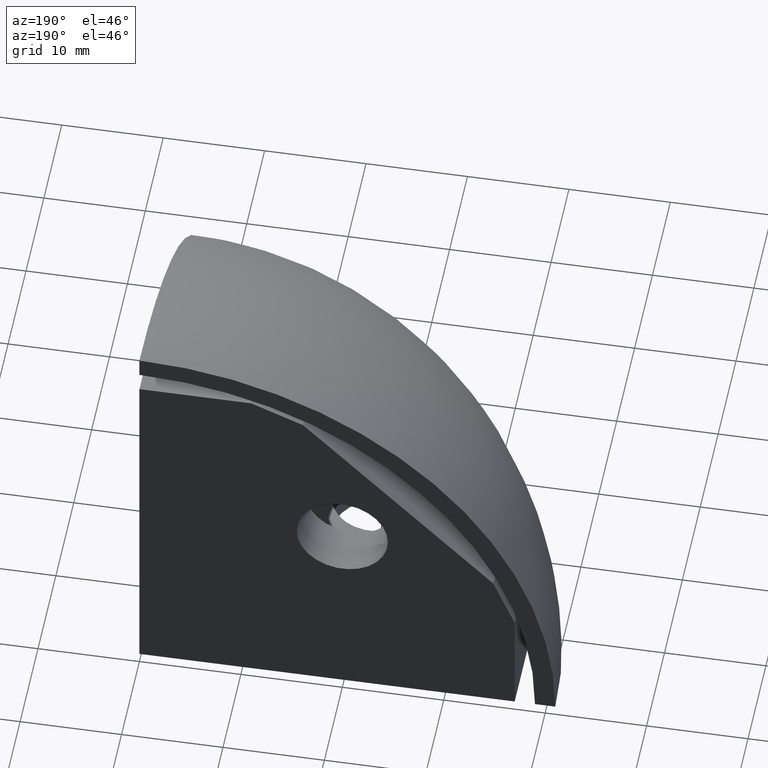
[diagram: clean part render]
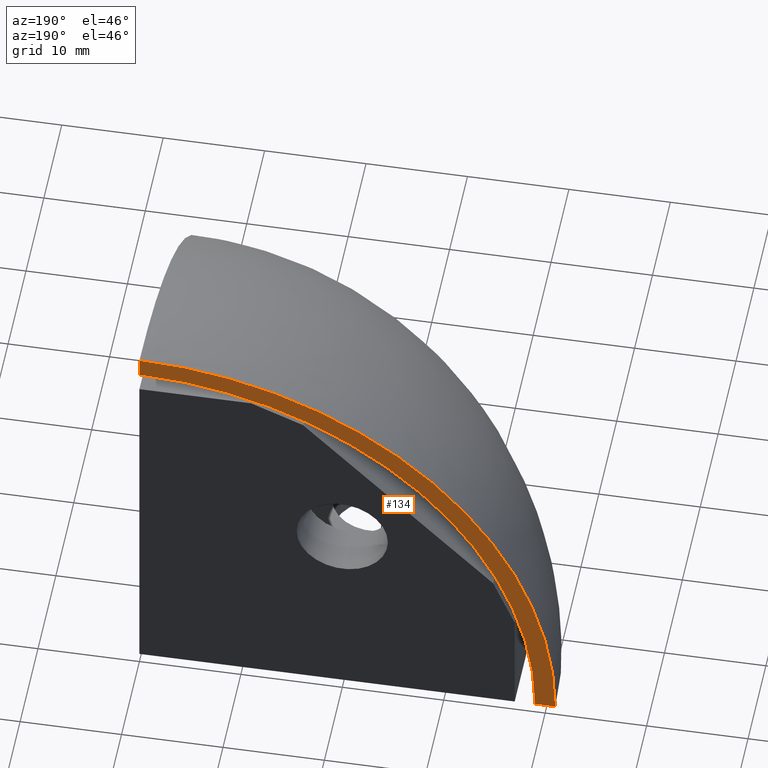
[diagram: same view with one face highlighted and labeled with its STEP entity id]
A machine part, auxiliary view. The second image highlights one B-rep face of the part: STEP entity #134.
In plain terms, the highlighted planar face has unit normal (0, 1, 0).
Its self-contained STEP definition (entity closure, byte-faithful):
#19=CARTESIAN_POINT('',(-41.0,0.0,0.0));
#20=VERTEX_POINT('',#19);
#30=CARTESIAN_POINT('',(0.0,0.0,41.0));
#31=VERTEX_POINT('',#30);
#39=CARTESIAN_POINT('',(0.0,0.0,0.0));
#40=DIRECTION('',(0.0,1.0,0.0));
#41=DIRECTION('',(-1.0,0.0,0.0));
#42=AXIS2_PLACEMENT_3D('',#39,#40,#41);
#43=CIRCLE('',#42,41.0);
#44=EDGE_CURVE('',#20,#31,#43,.T.);
#66=CARTESIAN_POINT('',(-3.552714E-015,0.0,39.0));
#67=VERTEX_POINT('',#66);
#77=CARTESIAN_POINT('',(-39.0,0.0,0.0));
#78=VERTEX_POINT('',#77);
#86=CARTESIAN_POINT('',(0.0,0.0,0.0));
#87=DIRECTION('',(0.0,-1.0,0.0));
#88=DIRECTION('',(-1.0,0.0,0.0));
#89=AXIS2_PLACEMENT_3D('',#86,#87,#88);
#90=CIRCLE('',#89,39.0);
#91=EDGE_CURVE('',#67,#78,#90,.T.);
#109=CARTESIAN_POINT('',(-39.0,0.0,0.0));
#110=DIRECTION('',(-1.0,0.0,0.0));
#111=VECTOR('',#110,2.0);
#112=LINE('',#109,#111);
#113=EDGE_CURVE('',#78,#20,#112,.T.);
#118=CARTESIAN_POINT('',(-45.100000745576331,0.0,45.100000745576331));
#119=DIRECTION('',(0.0,1.0,0.0));
#120=DIRECTION('',(1.0,0.0,0.0));
#121=AXIS2_PLACEMENT_3D('',#118,#119,#120);
#122=PLANE('',#121);
#123=ORIENTED_EDGE('',*,*,#44,.T.);
#124=CARTESIAN_POINT('',(0.0,0.0,41.0));
#125=DIRECTION('',(0.0,0.0,-1.0));
#126=VECTOR('',#125,2.0);
#127=LINE('',#124,#126);
#128=EDGE_CURVE('',#31,#67,#127,.T.);
#129=ORIENTED_EDGE('',*,*,#128,.T.);
#130=ORIENTED_EDGE('',*,*,#91,.T.);
#131=ORIENTED_EDGE('',*,*,#113,.T.);
#132=EDGE_LOOP('',(#123,#129,#130,#131));
#133=FACE_OUTER_BOUND('',#132,.T.);
#134=ADVANCED_FACE('',(#133),#122,.T.);